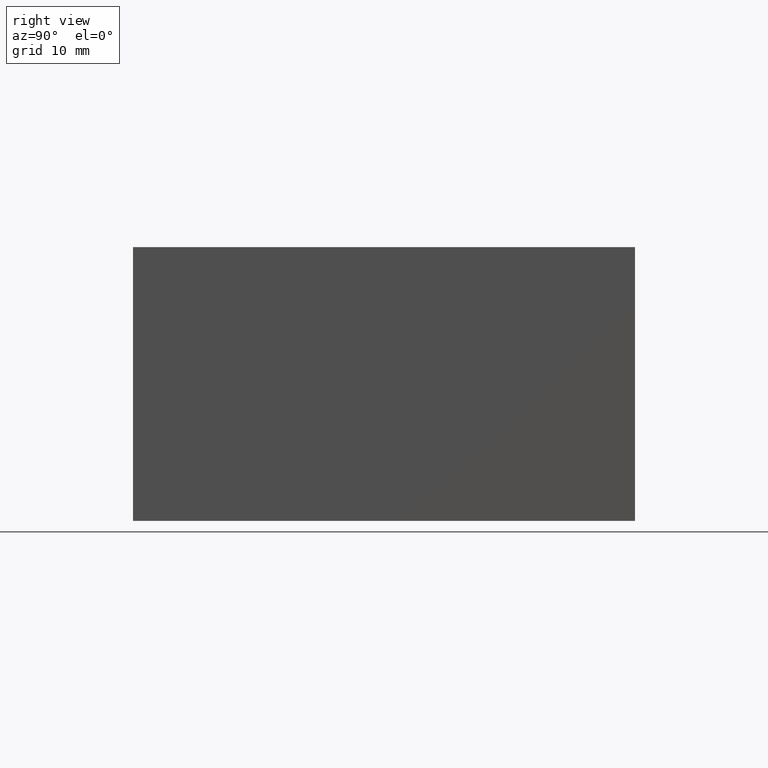
[diagram: clean part render]
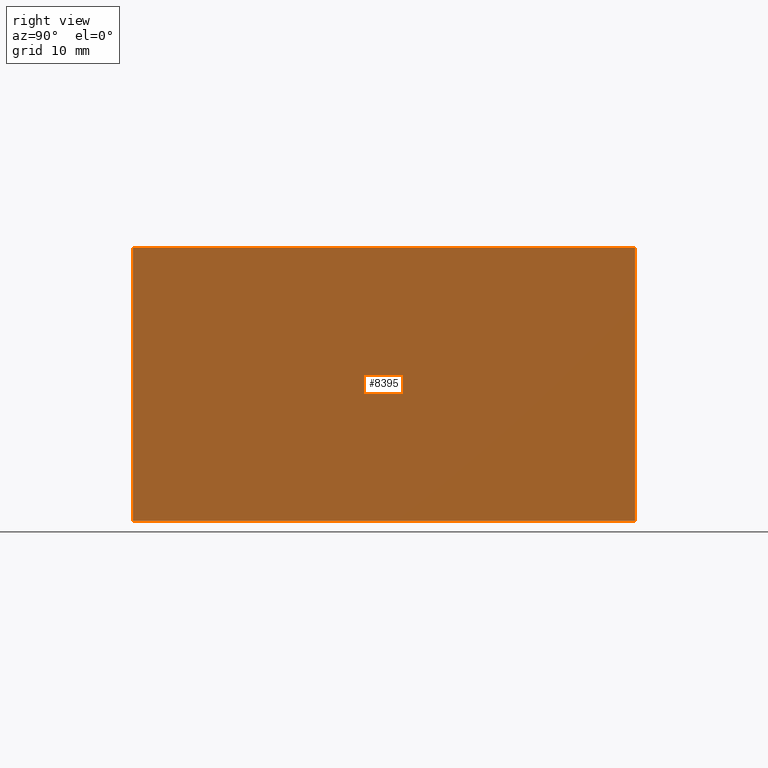
[diagram: same view with one face highlighted and labeled with its STEP entity id]
A machine part, right view. The second image highlights one B-rep face of the part: STEP entity #8395.
In plain terms, the highlighted planar face has unit normal (1, 0, 0).
Its self-contained STEP definition (entity closure, byte-faithful):
#950=FACE_OUTER_BOUND('',#1422,.T.);
#1422=EDGE_LOOP('',(#7288,#7289,#7290,#7291));
#1852=LINE('',#12845,#2693);
#2285=LINE('',#14148,#3126);
#2286=LINE('',#14150,#3127);
#2287=LINE('',#14151,#3128);
#2693=VECTOR('',#9514,10.);
#3126=VECTOR('',#10619,10.);
#3127=VECTOR('',#10620,10.);
#3128=VECTOR('',#10621,10.);
#3507=VERTEX_POINT('',#12838);
#3510=VERTEX_POINT('',#12843);
#3916=VERTEX_POINT('',#14147);
#3917=VERTEX_POINT('',#14149);
#4485=EDGE_CURVE('',#3507,#3510,#1852,.T.);
#5057=EDGE_CURVE('',#3916,#3507,#2285,.T.);
#5058=EDGE_CURVE('',#3917,#3510,#2286,.T.);
#5059=EDGE_CURVE('',#3916,#3917,#2287,.T.);
#7288=ORIENTED_EDGE('',*,*,#5057,.T.);
#7289=ORIENTED_EDGE('',*,*,#4485,.T.);
#7290=ORIENTED_EDGE('',*,*,#5058,.F.);
#7291=ORIENTED_EDGE('',*,*,#5059,.F.);
#7629=PLANE('',#8867);
#8395=ADVANCED_FACE('',(#950),#7629,.T.);
#8867=AXIS2_PLACEMENT_3D('',#14146,#10617,#10618);
#9514=DIRECTION('',(0.,0.,1.));
#10617=DIRECTION('center_axis',(1.,0.,0.));
#10618=DIRECTION('ref_axis',(0.,1.,0.));
#10619=DIRECTION('',(0.,1.,0.));
#10620=DIRECTION('',(0.,1.,0.));
#10621=DIRECTION('',(0.,0.,1.));
#12838=CARTESIAN_POINT('',(63.5,69.85,0.));
#12843=CARTESIAN_POINT('',(63.5,69.85,38.1));
#12845=CARTESIAN_POINT('',(63.5,69.85,0.));
#14146=CARTESIAN_POINT('Origin',(63.5,0.,0.));
#14147=CARTESIAN_POINT('',(63.5,0.,0.));
#14148=CARTESIAN_POINT('',(63.5,0.,0.));
#14149=CARTESIAN_POINT('',(63.5,0.,38.1));
#14150=CARTESIAN_POINT('',(63.5,0.,38.1));
#14151=CARTESIAN_POINT('',(63.5,0.,0.));